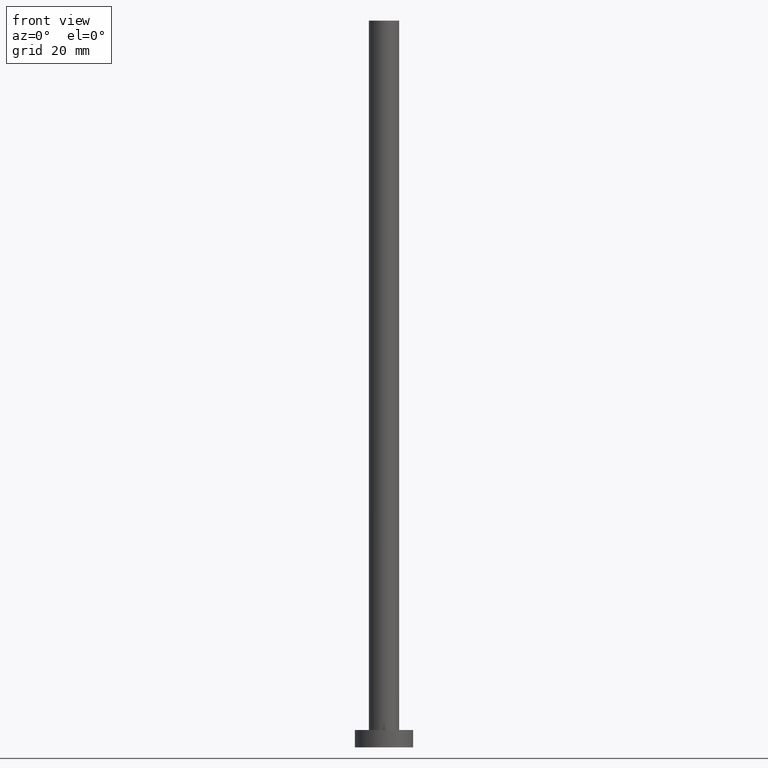
[diagram: clean part render]
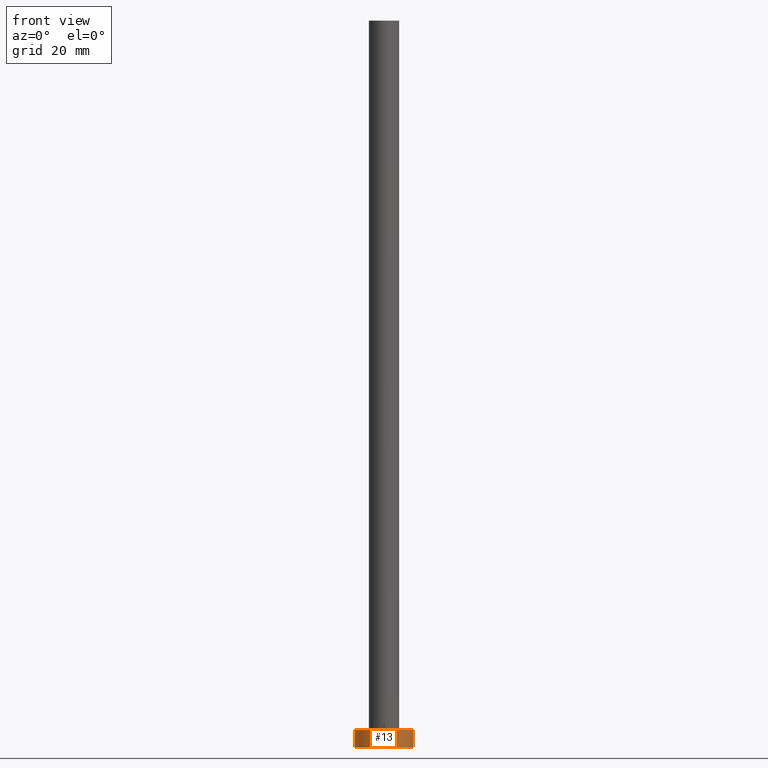
[diagram: same view with one face highlighted and labeled with its STEP entity id]
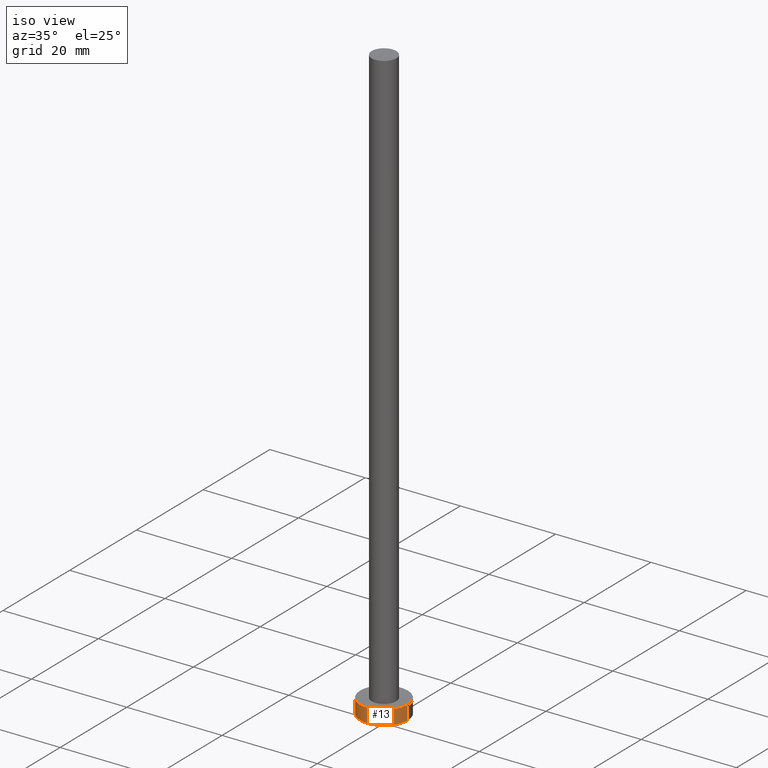
[diagram: same view with one face highlighted and labeled with its STEP entity id]
A machine part, front view. The second image highlights one B-rep face of the part: STEP entity #13.
A second angle (iso view) of the same face is appended — the face is thin or edge-on in the first view.
In plain terms, the highlighted cylindrical surface (edge-blend (fillet) strip) has radius 5 mm, axis along (-0, -0, -1).
Its self-contained STEP definition (entity closure, byte-faithful):
#11 = EDGE_LOOP ( 'NONE', ( #244, #170, #223, #49 ) ) ;
#12 = CARTESIAN_POINT ( 'NONE',  ( 5.000000000000000000, 6.123233995736766282E-16, 3.000000000000000000 ) ) ;
#13 = ADVANCED_FACE ( 'NONE', ( #205 ), #148, .T. ) ;
#14 = DIRECTION ( 'NONE',  ( -0.000000000000000000, -0.000000000000000000, -1.000000000000000000 ) ) ;
#31 = AXIS2_PLACEMENT_3D ( 'NONE', #204, #248, #105 ) ;
#32 = VERTEX_POINT ( 'NONE', #229 ) ;
#34 = LINE ( 'NONE', #111, #212 ) ;
#49 = ORIENTED_EDGE ( 'NONE', *, *, #220, .T. ) ;
#51 = DIRECTION ( 'NONE',  ( -0.000000000000000000, -0.000000000000000000, -1.000000000000000000 ) ) ;
#54 = CARTESIAN_POINT ( 'NONE',  ( 0.000000000000000000, 0.000000000000000000, 0.000000000000000000 ) ) ;
#59 = AXIS2_PLACEMENT_3D ( 'NONE', #54, #90, #134 ) ;
#63 = EDGE_CURVE ( 'NONE', #227, #32, #34, .T. ) ;
#64 = CIRCLE ( 'NONE', #31, 5.000000000000000000 ) ;
#74 = EDGE_CURVE ( 'NONE', #227, #210, #64, .T. ) ;
#76 = CARTESIAN_POINT ( 'NONE',  ( 5.000000000000000000, 6.123233995736766282E-16, 3.000000000000000000 ) ) ;
#84 = EDGE_CURVE ( 'NONE', #210, #88, #171, .T. ) ;
#86 = CARTESIAN_POINT ( 'NONE',  ( 5.000000000000000000, 6.123233995736766282E-16, 0.000000000000000000 ) ) ;
#88 = VERTEX_POINT ( 'NONE', #86 ) ;
#90 = DIRECTION ( 'NONE',  ( 0.000000000000000000, 0.000000000000000000, 1.000000000000000000 ) ) ;
#94 = CARTESIAN_POINT ( 'NONE',  ( -5.000000000000000000, 0.000000000000000000, 3.000000000000000000 ) ) ;
#105 = DIRECTION ( 'NONE',  ( 1.000000000000000000, 0.000000000000000000, 0.000000000000000000 ) ) ;
#111 = CARTESIAN_POINT ( 'NONE',  ( -5.000000000000000000, 0.000000000000000000, 3.000000000000000000 ) ) ;
#134 = DIRECTION ( 'NONE',  ( 1.000000000000000000, 0.000000000000000000, 0.000000000000000000 ) ) ;
#137 = CIRCLE ( 'NONE', #59, 5.000000000000000000 ) ;
#146 = DIRECTION ( 'NONE',  ( -1.000000000000000000, 0.000000000000000000, 0.000000000000000000 ) ) ;
#148 = CYLINDRICAL_SURFACE ( 'NONE', #242, 5.000000000000000000 ) ;
#169 = DIRECTION ( 'NONE',  ( -0.000000000000000000, -0.000000000000000000, -1.000000000000000000 ) ) ;
#170 = ORIENTED_EDGE ( 'NONE', *, *, #74, .F. ) ;
#171 = LINE ( 'NONE', #12, #247 ) ;
#204 = CARTESIAN_POINT ( 'NONE',  ( 0.000000000000000000, 0.000000000000000000, 3.000000000000000000 ) ) ;
#205 = FACE_OUTER_BOUND ( 'NONE', #11, .T. ) ;
#210 = VERTEX_POINT ( 'NONE', #76 ) ;
#212 = VECTOR ( 'NONE', #169, 1000.000000000000000 ) ;
#220 = EDGE_CURVE ( 'NONE', #32, #88, #137, .T. ) ;
#223 = ORIENTED_EDGE ( 'NONE', *, *, #63, .T. ) ;
#227 = VERTEX_POINT ( 'NONE', #94 ) ;
#229 = CARTESIAN_POINT ( 'NONE',  ( -5.000000000000000000, 0.000000000000000000, 0.000000000000000000 ) ) ;
#242 = AXIS2_PLACEMENT_3D ( 'NONE', #250, #14, #146 ) ;
#244 = ORIENTED_EDGE ( 'NONE', *, *, #84, .F. ) ;
#247 = VECTOR ( 'NONE', #51, 1000.000000000000000 ) ;
#248 = DIRECTION ( 'NONE',  ( 0.000000000000000000, 0.000000000000000000, 1.000000000000000000 ) ) ;
#250 = CARTESIAN_POINT ( 'NONE',  ( 0.000000000000000000, 0.000000000000000000, 3.000000000000000000 ) ) ;